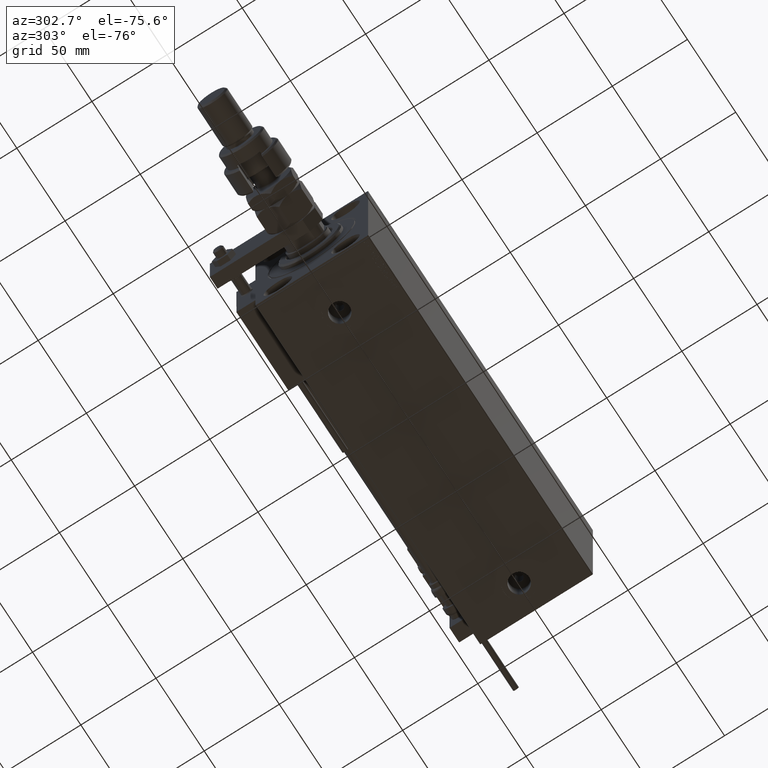
[diagram: clean part render]
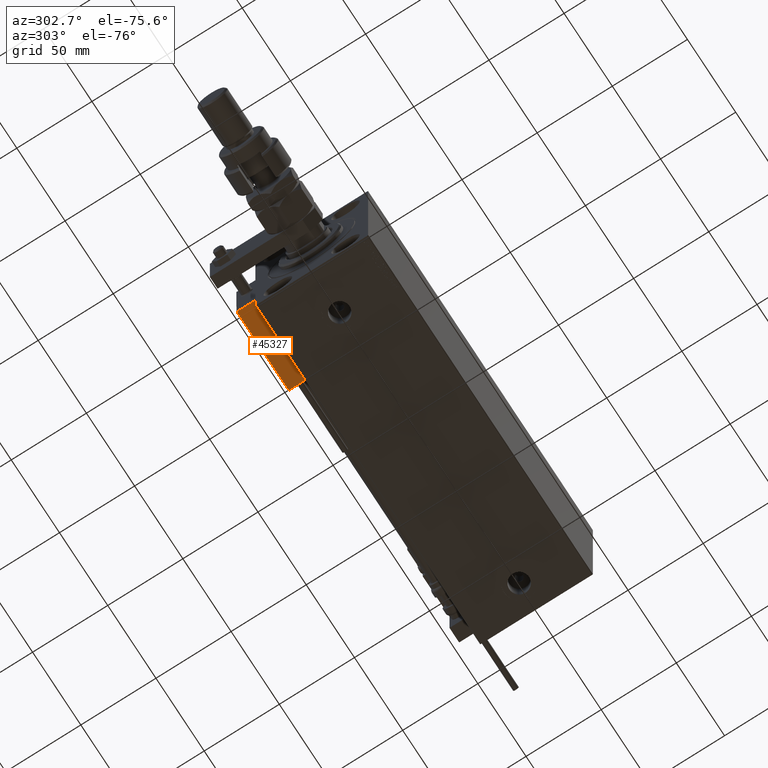
[diagram: same view with one face highlighted and labeled with its STEP entity id]
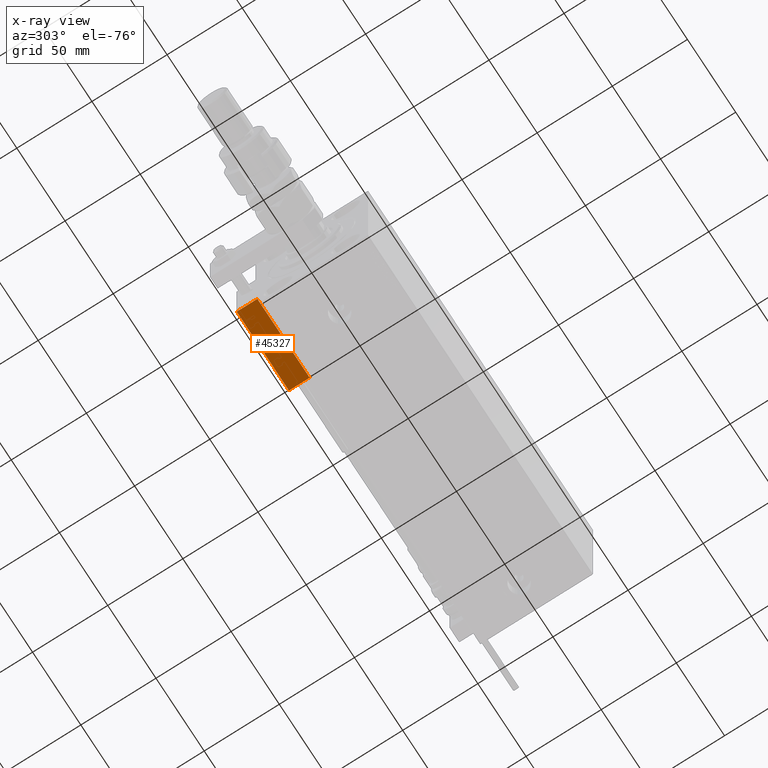
[diagram: x-ray of the same camera — body ghosted, the highlighted face saturated]
A machine part, auxiliary view. The second image highlights one B-rep face of the part: STEP entity #45327.
The next image is the same camera in x-ray: the body ghosted, the highlighted face saturated — about 0% of this face is hidden behind the body in this view.
In plain terms, the highlighted planar face has unit normal (0, 0, 1).
Its self-contained STEP definition (entity closure, byte-faithful):
#121 = CARTESIAN_POINT ( 'NONE',  ( 27.00000000000006395, 20.00000000000001776, 13.70000000000000107 ) ) ;
#1392 = DIRECTION ( 'NONE',  ( -0.000000000000000000, -0.000000000000000000, -1.000000000000000000 ) ) ;
#1416 = LINE ( 'NONE', #26502, #1417 ) ;
#1417 = VECTOR ( 'NONE', #39447, 1000.000000000000000 ) ;
#3187 = CARTESIAN_POINT ( 'NONE',  ( 27.00000000000006395, 20.00000000000001776, 14.00000000000000000 ) ) ;
#6611 = CARTESIAN_POINT ( 'NONE',  ( 27.00000000000006395, 20.00000000000001776, 0.000000000000000000 ) ) ;
#7209 = DIRECTION ( 'NONE',  ( 1.000000000000000000, -6.424901762877063495E-17, 0.000000000000000000 ) ) ;
#7419 = VERTEX_POINT ( 'NONE', #6611 ) ;
#10365 = VECTOR ( 'NONE', #1392, 1000.000000000000000 ) ;
#13290 = VERTEX_POINT ( 'NONE', #27998 ) ;
#13335 = EDGE_CURVE ( 'NONE', #38512, #7419, #15874, .T. ) ;
#14923 = DIRECTION ( 'NONE',  ( 1.000000000000000000, -6.424901762877063495E-17, -0.000000000000000000 ) ) ;
#14945 = DIRECTION ( 'NONE',  ( -6.424901762877063495E-17, -1.000000000000000000, 0.000000000000000000 ) ) ;
#14998 = EDGE_LOOP ( 'NONE', ( #38281, #32886, #24084, #30515 ) ) ;
#15338 = EDGE_CURVE ( 'NONE', #45955, #13290, #26748, .T. ) ;
#15874 = LINE ( 'NONE', #3187, #36699 ) ;
#23972 = EDGE_CURVE ( 'NONE', #45955, #38512, #52655, .T. ) ;
#24027 = FACE_OUTER_BOUND ( 'NONE', #14998, .T. ) ;
#24084 = ORIENTED_EDGE ( 'NONE', *, *, #13335, .T. ) ;
#26502 = CARTESIAN_POINT ( 'NONE',  ( 27.00000000000006395, 20.00000000000001776, 0.000000000000000000 ) ) ;
#26748 = LINE ( 'NONE', #51820, #10365 ) ;
#27720 = DIRECTION ( 'NONE',  ( -0.000000000000000000, -0.000000000000000000, -1.000000000000000000 ) ) ;
#27998 = CARTESIAN_POINT ( 'NONE',  ( -26.99999999999993605, 20.00000000000002132, 0.000000000000000000 ) ) ;
#30515 = ORIENTED_EDGE ( 'NONE', *, *, #39024, .T. ) ;
#31725 = CARTESIAN_POINT ( 'NONE',  ( 27.00000000000006395, 20.00000000000001776, 13.70000000000000107 ) ) ;
#32886 = ORIENTED_EDGE ( 'NONE', *, *, #23972, .T. ) ;
#36699 = VECTOR ( 'NONE', #27720, 1000.000000000000000 ) ;
#38281 = ORIENTED_EDGE ( 'NONE', *, *, #15338, .F. ) ;
#38512 = VERTEX_POINT ( 'NONE', #121 ) ;
#39024 = EDGE_CURVE ( 'NONE', #7419, #13290, #1416, .T. ) ;
#39447 = DIRECTION ( 'NONE',  ( -1.000000000000000000, 6.424901762877062263E-17, 0.000000000000000000 ) ) ;
#40009 = PLANE ( 'NONE',  #50077 ) ;
#41107 = CARTESIAN_POINT ( 'NONE',  ( 27.00000000000006395, 20.00000000000001776, 14.00000000000000000 ) ) ;
#42523 = CARTESIAN_POINT ( 'NONE',  ( -26.99999999999993605, 20.00000000000002132, 13.70000000000000107 ) ) ;
#45327 = ADVANCED_FACE ( 'NONE', ( #24027 ), #40009, .F. ) ;
#45955 = VERTEX_POINT ( 'NONE', #42523 ) ;
#47503 = VECTOR ( 'NONE', #14923, 1000.000000000000000 ) ;
#50077 = AXIS2_PLACEMENT_3D ( 'NONE', #41107, #14945, #7209 ) ;
#51820 = CARTESIAN_POINT ( 'NONE',  ( -26.99999999999993605, 20.00000000000002132, 14.00000000000000000 ) ) ;
#52655 = LINE ( 'NONE', #31725, #47503 ) ;